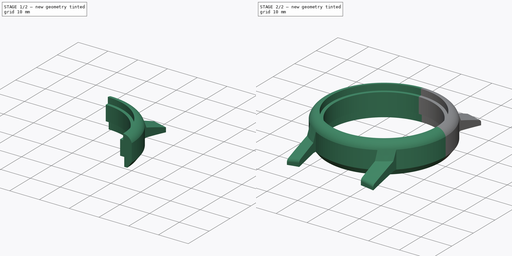
[diagram: build sequence overview — one tinted view per stage of 2, left to right]
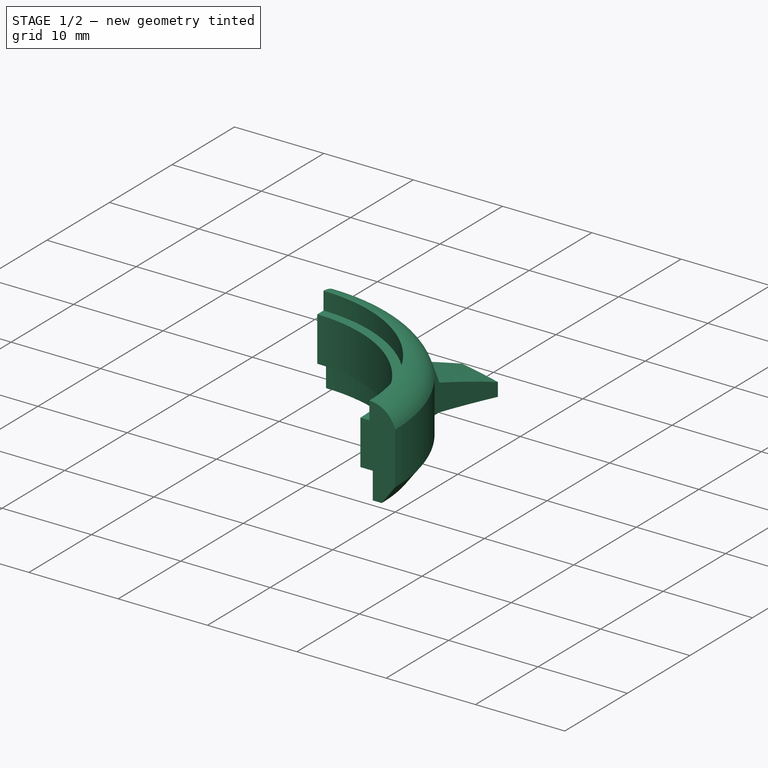
[diagram: stage 1 of 2 — iso view after this stage's code; geometry added in this stage tinted green]
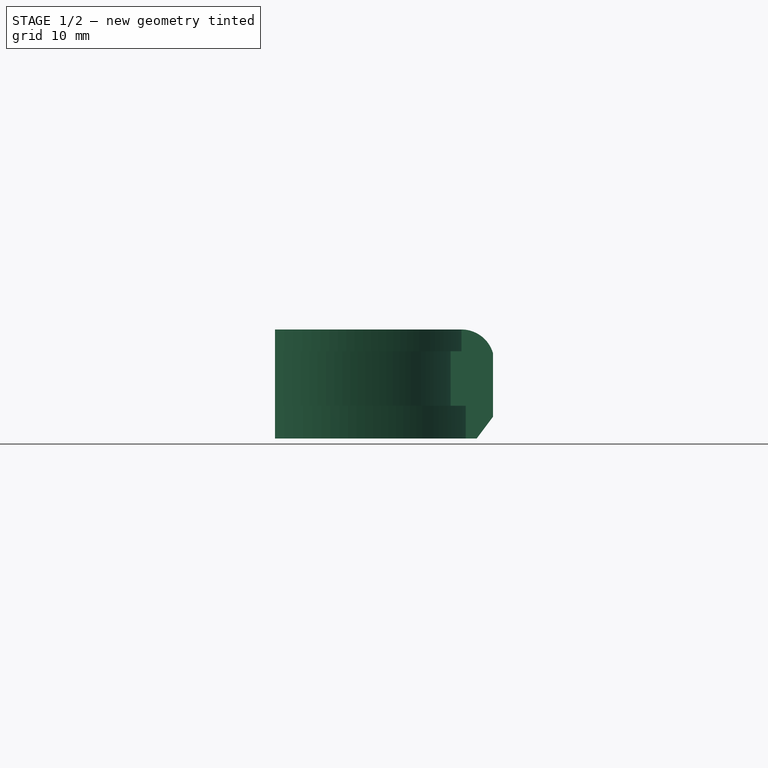
[diagram: stage 1 of 2 — front view after this stage's code; geometry added in this stage tinted green]
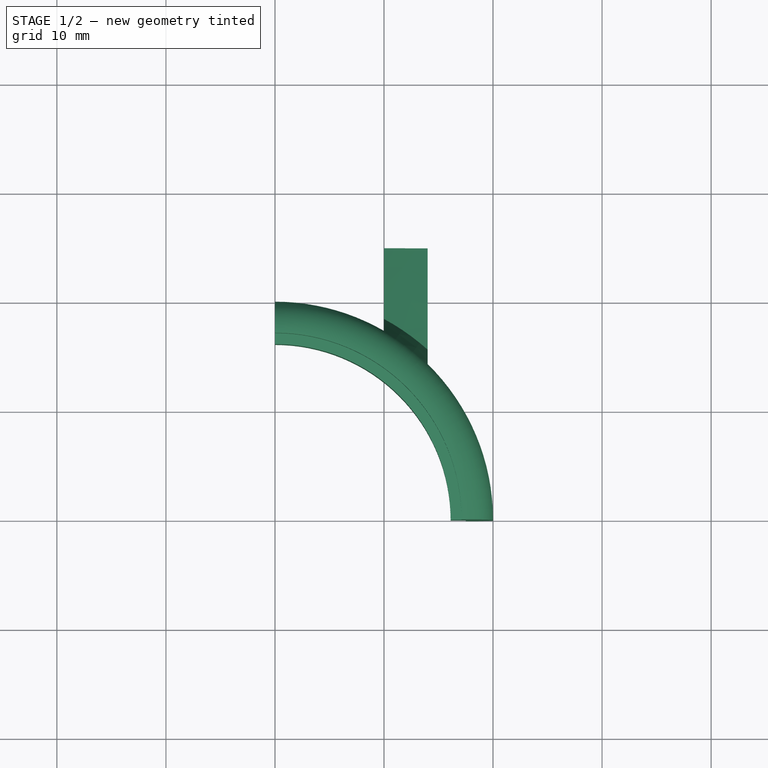
[diagram: stage 1 of 2 — top view after this stage's code; geometry added in this stage tinted green]
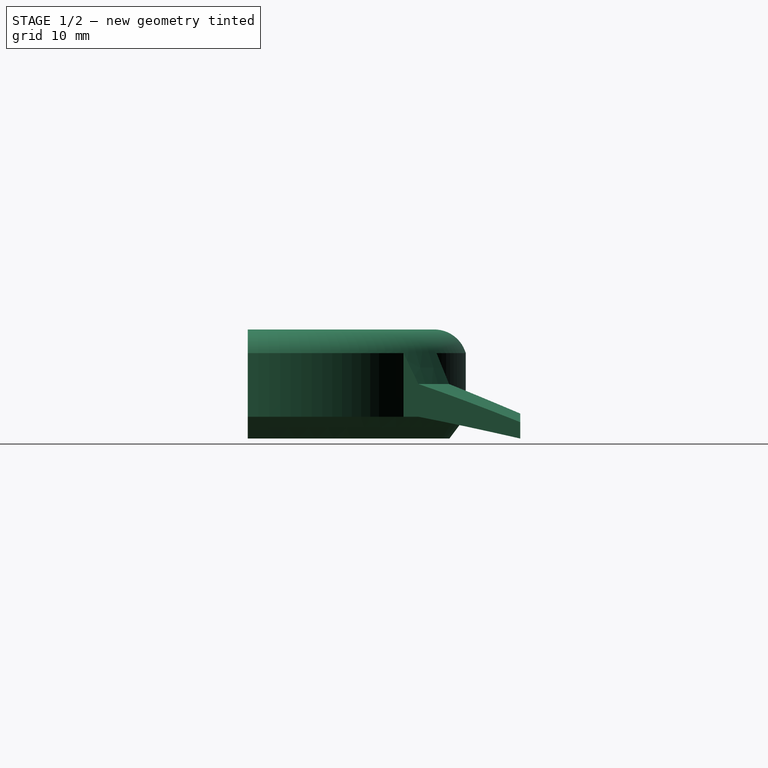
[diagram: stage 1 of 2 — right view after this stage's code; geometry added in this stage tinted green]
FCSTD DOCUMENT  (FreeCAD 0.21RUnknown)
Label: part37
License: All rights reserved
LicenseURL: http://en.wikipedia.org/wiki/All_rights_reserved
objects: Sketcher::SketchObject×3, PartDesign::Mirrored×2, PartDesign::Revolution×1, PartDesign::Pocket×1, PartDesign::Fillet×1, PartDesign::MultiTransform×1, PartDesign::Body×1
note: 13 computed .brp shape members not serialized (recipe doc carries the construction recipe); baked Part::Feature solids carry a one-line shape summary decoded from their .brp

FEATURE [Sketcher::SketchObject] Sketch  label="TopGuide"
  FullyConstrained = false
  MapMode = 5
  Support = -> [XY_Plane]
  sketch-geometry (8):
    g0: Circle CenterX=0 CenterY=0 CenterZ=0 NormalX=0 NormalY=0 NormalZ=1 AngleXU=0 Radius=20
    g1: LineSegment StartX=10 StartY=17.3205 StartZ=0 EndX=10 EndY=25 EndZ=0
    g2: LineSegment StartX=10 StartY=25 StartZ=0 EndX=14 EndY=25 EndZ=0
    g3: LineSegment StartX=14 StartY=25 StartZ=0 EndX=14 EndY=14.2829 EndZ=0
    g4: ArcOfCircle CenterX=-1.34e-14 CenterY=-4.37e-14 CenterZ=0 NormalX=0 NormalY=0 NormalZ=1 AngleXU=0 Radius=20 StartAngle=1.0472 EndAngle=1.5708
    g5: ArcOfCircle CenterX=-0.00312946 CenterY=-0.00131463 CenterZ=0 NormalX=0 NormalY=0 NormalZ=1 AngleXU=0 Radius=20.0031 StartAngle=6.57214e-05 EndAngle=0.795333
    g6: Circle CenterX=-1.34e-14 CenterY=-4.37e-14 CenterZ=0 NormalX=0 NormalY=0 NormalZ=1 AngleXU=0 Radius=28.6531
    g7: GeomPoint X=0 Y=28.6531 Z=0
  constraints (24):
    c: Coincident(g0,g-1)
    c: Diameter(g0) = 40
    c: PointOnObject(g1,g0)
    c: Vertical(g1)
    c: Coincident(g1,g2)
    c: Horizontal(g2)
    c: Coincident(g2,g3)
    c: PointOnObject(g3,g0)
    c: Vertical(g3)
    c: PointOnObject(g4,g0)
    c: Coincident(g4,g1)
    c: Tangent(g4,g0)
    c: Coincident(g5,g3)
    c: PointOnObject(g5,g0)
    c: DistanceX(g4,g1) = 10
    c: DistanceX(g2,g2) = 4
    c: DistanceY(g5,g2) = 25
    c: PointOnObject(g4,g-2)
    c: PointOnObject(g5,g-1)
    c: Coincident(g6,g4)
    c: PointOnObject(g2,g6)
    c: PointOnObject(g7,g6)
    c: PointOnObject(g7,g-2)
    c: DistanceY(g4,g7) = 8.6531
FEATURE [Sketcher::SketchObject] Sketch001  label="WatchProfile"
  ExternalGeometry = -> [Sketch]
  FullyConstrained = true
  MapMode = 5
  Placement = pos=(0,0,0) rot=(1,0,0;1.5708rad)
  Support = -> [XZ_Plane]
  sketch-geometry (15):
    g0: GeomPoint X=17.1109 Y=10 Z=0
    g1: ArcOfCircle CenterX=17.1109 CenterY=7 CenterZ=0 NormalX=0 NormalY=0 NormalZ=1 AngleXU=0 Radius=3 StartAngle=0.339837 EndAngle=1.5708
    g2: LineSegment StartX=19.9393 StartY=8 StartZ=0 EndX=21 EndY=5 EndZ=0
    g3: LineSegment StartX=20 StartY=2 StartZ=0 EndX=21 EndY=2 EndZ=0
    g4: LineSegment StartX=17.5 StartY=0 StartZ=0 EndX=17.5 EndY=3 EndZ=0
    g5: LineSegment StartX=17.5 StartY=3 StartZ=0 EndX=16.1109 EndY=3 EndZ=0
    g6: LineSegment StartX=16.1109 StartY=3 StartZ=0 EndX=16.1109 EndY=8 EndZ=0
    g7: LineSegment StartX=16.1109 StartY=8 StartZ=0 EndX=17.1109 EndY=8 EndZ=0
    g8: LineSegment StartX=17.1109 StartY=8 StartZ=0 EndX=17.1109 EndY=10 EndZ=0
    g9: LineSegment StartX=18.5 StartY=0 StartZ=0 EndX=17.5 EndY=0 EndZ=0
    g10: GeomPoint X=28.65 Y=0 Z=0
    g11: LineSegment StartX=21 StartY=5 StartZ=0 EndX=28.65 EndY=1.5 EndZ=0
    g12: LineSegment StartX=21 StartY=2 StartZ=0 EndX=28.65 EndY=0 EndZ=0
    g13: LineSegment StartX=28.65 StartY=1.5 StartZ=0 EndX=28.65 EndY=0 EndZ=0
    g14: LineSegment StartX=20 StartY=2 StartZ=0 EndX=18.5 EndY=0 EndZ=0
  constraints (41):
    c: DistanceY(g-1,g0) = 10
    c: Coincident(g1,g0)
    c: Horizontal(g3)
    c: PointOnObject(g9,g-1)
    c: Coincident(g9,g4)
    c: Coincident(g4,g5)
    c: Coincident(g5,g6)
    c: Coincident(g6,g7)
    c: Horizontal(g7)
    c: Coincident(g7,g8)
    c: Coincident(g8,g1)
    c: PointOnObject(g9,g-1)
    c: Vertical(g8)
    c: Horizontal(g5)
    c: Vertical(g4)
    c: Vertical(g6)
    c: Equal(g9,g3)
    c: Vertical(g3,g-3)
    c: DistanceX(g9,g9) = 1
    c: Equal(g7,g9)
    c: DistanceY(g6,g6) = 5
    c: DistanceY(g3,g2) = 3
    c: Radius(g1) = 3
    c: DistanceY(g9,g3) = 2
    c: DistanceY(g8,g8) = 2
    c: Tangent(g2,g1) = 1.5708
    c: Horizontal(g1,g7)
    c: Vertical(g7,g1)
    c: PointOnObject(g10,g-1)
    c: DistanceX(g-3,g10) = 8.65
    c: Coincident(g11,g2)
    c: Coincident(g12,g3)
    c: Coincident(g13,g11)
    c: Coincident(g13,g12)
    c: Vertical(g13)
    c: Coincident(g12,g10)
    c: Vertical(g2,g3)
    c: DistanceY(g13,g13) = 1.5
    c: DistanceX(g9,g-3) = 1.5
    c: Coincident(g14,g3)
    c: Coincident(g14,g9)
FEATURE [PartDesign::Revolution] Revolution
  Angle = 90
  Axis = (0,2e-16,1)
  Base = (0,0,0)
  Placement = pos=(0,0,0) rot=(1,0,0;1.5708rad)
  Profile = -> Sketch001
  ReferenceAxis = -> Sketch001 [V_Axis]
FEATURE [Sketcher::SketchObject] Sketch002  label="TopGuide001"
  FullyConstrained = false
  MapMode = 5
  Support = -> [XY_Plane]
  sketch-geometry (10):
    g0: Circle CenterX=0 CenterY=0 CenterZ=0 NormalX=0 NormalY=0 NormalZ=1 AngleXU=0 Radius=20
    g1: LineSegment StartX=10 StartY=17.3205 StartZ=0 EndX=10 EndY=25 EndZ=0
    g2: LineSegment StartX=10 StartY=25 StartZ=0 EndX=14 EndY=25 EndZ=0
    g3: LineSegment StartX=14 StartY=25 StartZ=0 EndX=14 EndY=14.2829 EndZ=0
    g4: ArcOfCircle CenterX=-4.8e-15 CenterY=1.3e-15 CenterZ=0 NormalX=0 NormalY=0 NormalZ=1 AngleXU=0 Radius=20 StartAngle=1.0472 EndAngle=1.5708
    g5: ArcOfCircle CenterX=3.9e-15 CenterY=1.5e-15 CenterZ=0 NormalX=0 NormalY=0 NormalZ=1 AngleXU=0 Radius=20 StartAngle=0 EndAngle=0.795399
    g6: LineSegment StartX=9e-16 StartY=20 StartZ=0 EndX=0 EndY=41.9562 EndZ=0
    g7: LineSegment StartX=0 StartY=41.9562 StartZ=0 EndX=37.4026 EndY=41.9562 EndZ=0
    g8: LineSegment StartX=37.4026 StartY=41.9562 StartZ=0 EndX=37.4026 EndY=0 EndZ=0
    g9: LineSegment StartX=37.4026 StartY=0 StartZ=0 EndX=20 EndY=1.5e-15 EndZ=0
  constraints (29):
    c: Coincident(g0,g-1)
    c: Diameter(g0) = 40
    c: PointOnObject(g1,g0)
    c: Vertical(g1)
    c: Coincident(g1,g2)
    c: Horizontal(g2)
    c: Coincident(g2,g3)
    c: PointOnObject(g3,g0)
    c: Vertical(g3)
    c: PointOnObject(g4,g0)
    c: Coincident(g4,g1)
    c: Tangent(g4,g0)
    c: Coincident(g5,g3)
    c: PointOnObject(g5,g0)
    c: DistanceX(g4,g1) = 10
    c: DistanceX(g2,g2) = 4
    c: DistanceY(g5,g2) = 25
    c: PointOnObject(g4,g-2)
    c: PointOnObject(g5,g-1)
    c: Equal(g4,g5)
    c: Coincident(g4,g6)
    c: Coincident(g6,g7)
    c: Horizontal(g7)
    c: Coincident(g7,g8)
    c: PointOnObject(g8,g-1)
    c: Vertical(g8)
    c: Coincident(g9,g8)
    c: Coincident(g9,g5)
    c: PointOnObject(g6,g-2)
FEATURE [PartDesign::Pocket] Pocket
  BaseFeature = -> Revolution
  Direction = (0,0,-1)
  Length = 5
  Length2 = 5
  Placement = pos=(0,0,0) rot=(1,0,0;1.5708rad)
  Profile = -> Sketch002
  ReferenceAxis = -> Sketch002 [N_Axis]
  Reversed = true
  Type = 1
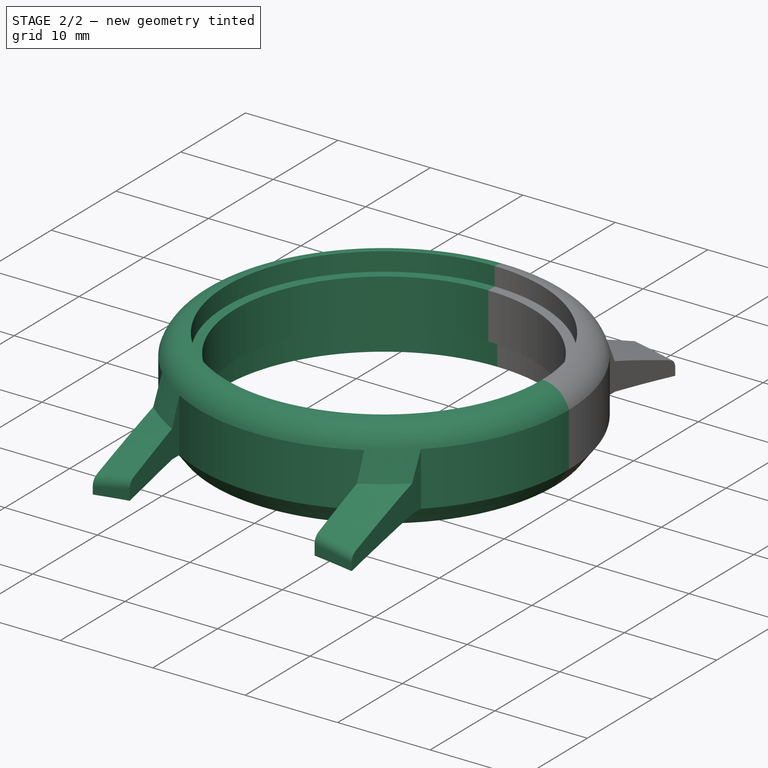
[diagram: stage 2 of 2 — iso view after this stage's code; geometry added in this stage tinted green]
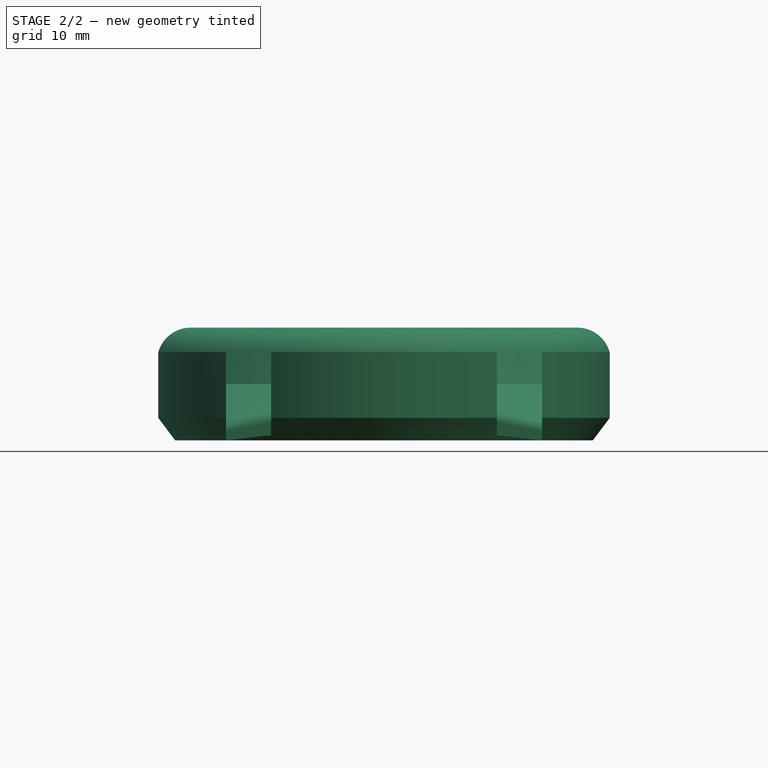
[diagram: stage 2 of 2 — front view after this stage's code; geometry added in this stage tinted green]
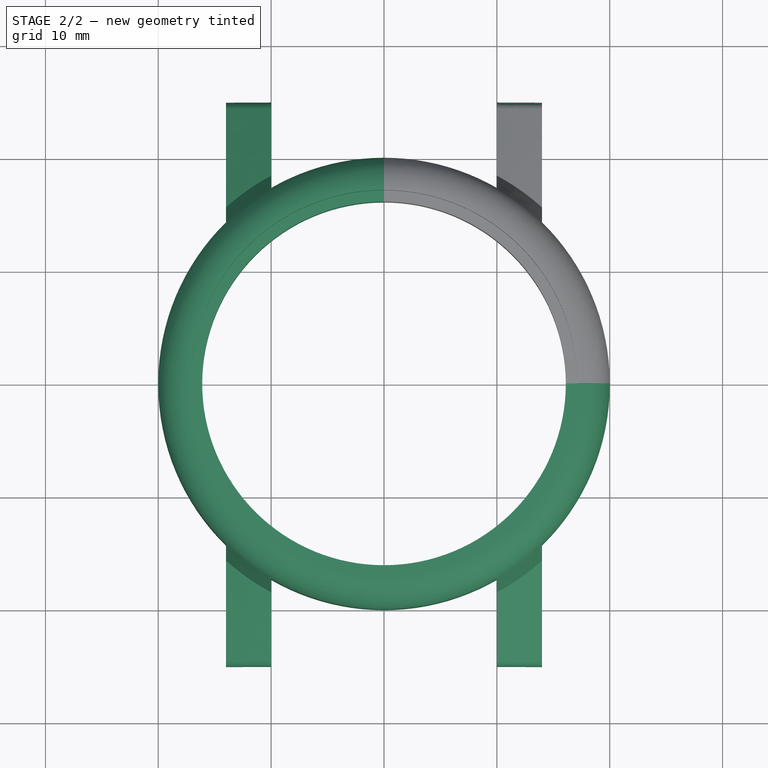
[diagram: stage 2 of 2 — top view after this stage's code; geometry added in this stage tinted green]
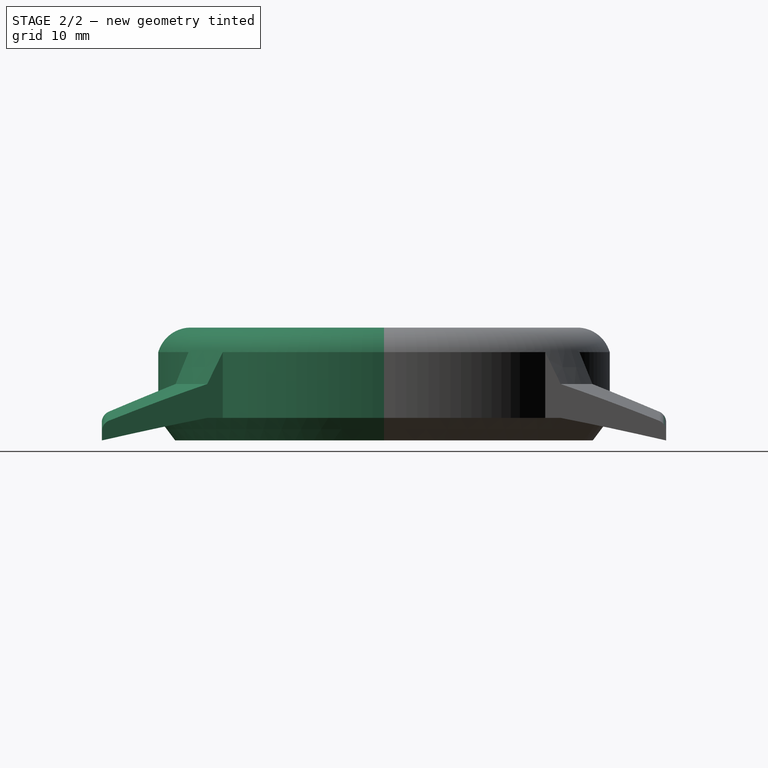
[diagram: stage 2 of 2 — right view after this stage's code; geometry added in this stage tinted green]
FEATURE [PartDesign::Fillet] Fillet
  Base = -> Pocket [Edge25]
  BaseFeature = -> Pocket
  Placement = pos=(0,0,0) rot=(1,0,0;1.5708rad)
  Radius = 1
  SupportTransform = false
  UseAllEdges = false
FEATURE [PartDesign::Mirrored] Mirrored
  MirrorPlane = -> YZ_Plane
  Placement = pos=(0,0,0) rot=(1,0,0;1.5708rad)
FEATURE [PartDesign::Mirrored] Mirrored001
  MirrorPlane = -> XZ_Plane
  Placement = pos=(0,0,0) rot=(1,0,0;1.5708rad)
FEATURE [PartDesign::MultiTransform] MultiTransform
  BaseFeature = -> Fillet
  Originals = -> [Revolution,Pocket,Fillet]
  Placement = pos=(0,0,0) rot=(1,0,0;1.5708rad)
  Transformations = -> [Mirrored,Mirrored001]
FEATURE [PartDesign::Body] Body
  Group = -> [Sketch,Sketch001,Revolution,Sketch002,Pocket,Fillet,MultiTransform,Mirrored,Mirrored001]
  Origin = -> Origin
  Tip = -> MultiTransform
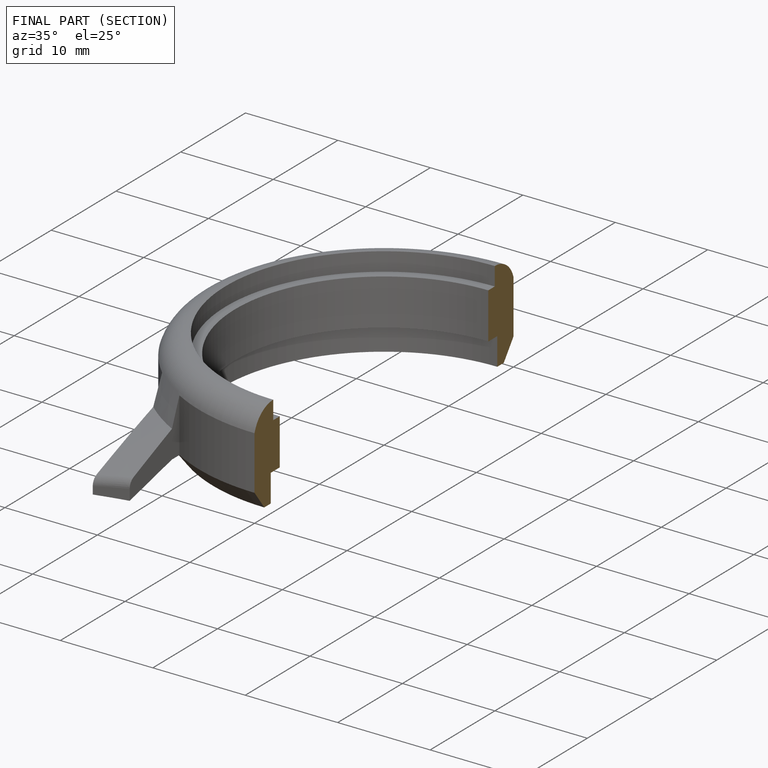
[diagram: finished part — half-section view (interior)]
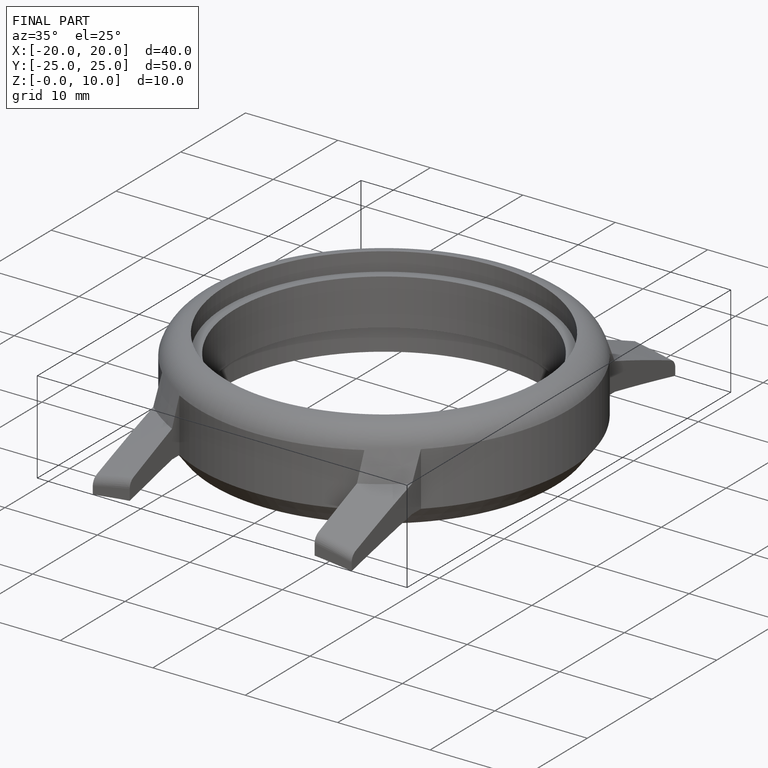
[diagram: finished part — iso view with bounding-box wireframe]
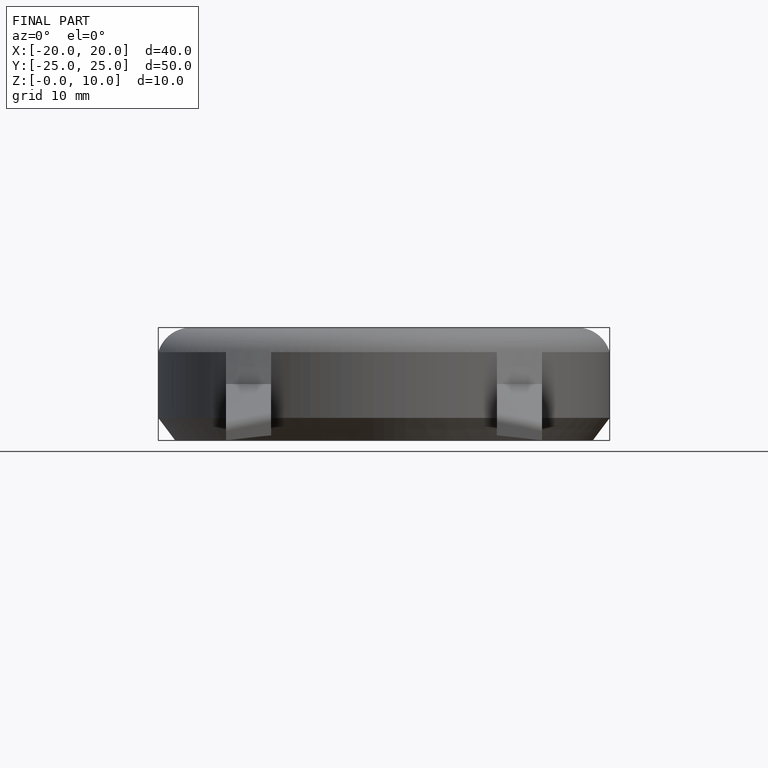
[diagram: finished part — front view with bounding-box wireframe]
